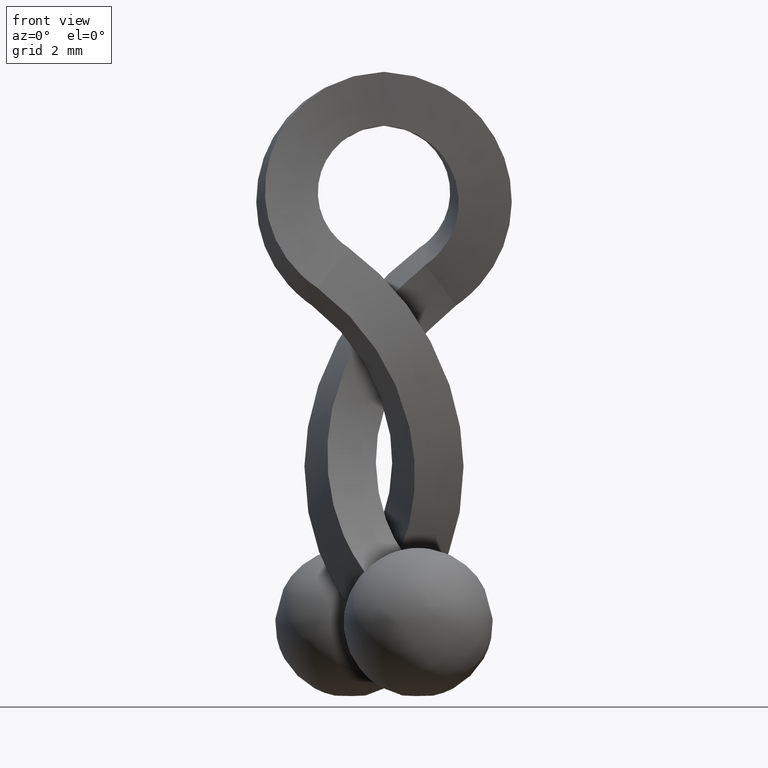
[diagram: clean part render]
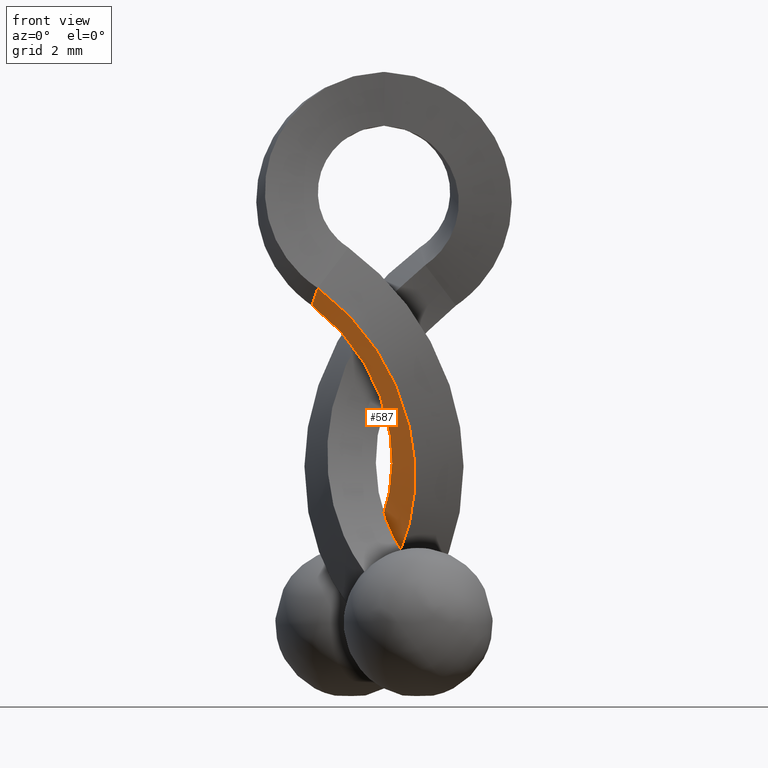
[diagram: same view with one face highlighted and labeled with its STEP entity id]
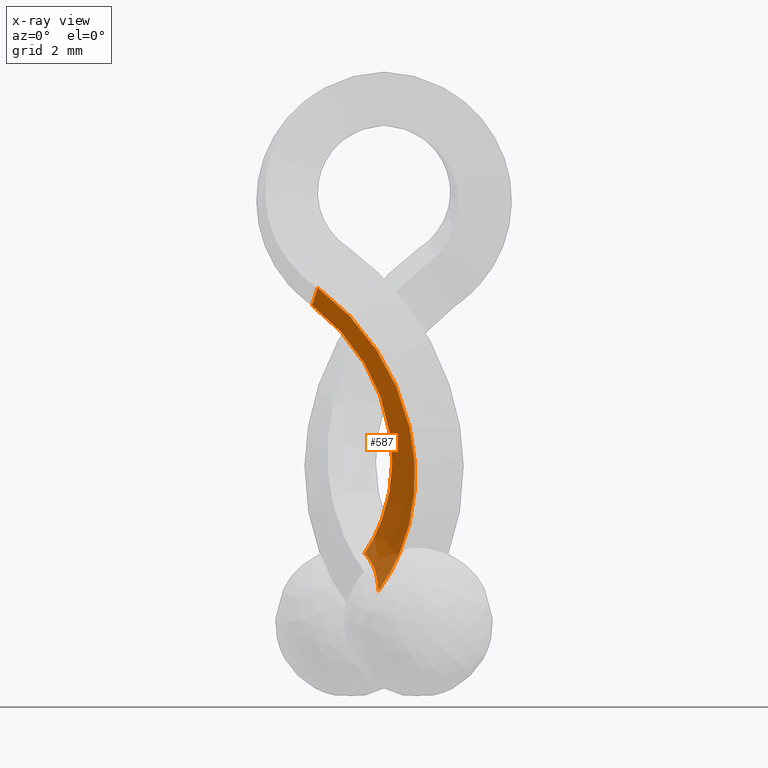
[diagram: x-ray of the same camera — body ghosted, the highlighted face saturated]
A machine part, front view. The second image highlights one B-rep face of the part: STEP entity #587.
The next image is the same camera in x-ray: the body ghosted, the highlighted face saturated — about 9% of this face is hidden behind the body in this view.
In plain terms, the highlighted face is a freeform B-spline surface patch.
Its self-contained STEP definition (entity closure, byte-faithful):
#88=CARTESIAN_POINT('',(-0.187365948330412,0.197707666171950,-13.245755313469999));
#89=VERTEX_POINT('',#88);
#90=CARTESIAN_POINT('',(-0.657491439051927,1.417299756467276,-11.994778617612900));
#91=VERTEX_POINT('',#90);
#92=CARTESIAN_POINT('',(-0.187365948330411,0.197707666171949,-13.245755313469999));
#93=CARTESIAN_POINT('',(-0.191825561108099,0.267382023275011,-13.106048539562650));
#94=CARTESIAN_POINT('',(-0.206212875228469,0.345901673045128,-12.974420041253261));
#95=CARTESIAN_POINT('',(-0.252517118538662,0.520171432898224,-12.726562867938370));
#96=CARTESIAN_POINT('',(-0.284441562416608,0.615921915084131,-12.610335852671970));
#97=CARTESIAN_POINT('',(-0.366018238235765,0.825973442296277,-12.394248576698580));
#98=CARTESIAN_POINT('',(-0.414286045230814,0.936726671208481,-12.298061945655890));
#99=CARTESIAN_POINT('',(-0.497286466168865,1.110925992209072,-12.171055447944710));
#100=CARTESIAN_POINT('',(-0.526742700382461,1.170355930958676,-12.131606707625981));
#101=CARTESIAN_POINT('',(-0.589372807412689,1.291966412588508,-12.058598821255240));
#102=CARTESIAN_POINT('',(-0.622638408444846,1.354304698464043,-12.024980235827170));
#103=CARTESIAN_POINT('',(-0.657491439051927,1.417299756467276,-11.994778617612900));
#104=B_SPLINE_CURVE_WITH_KNOTS('',3,(#92,#93,#94,#95,#96,#97,#98,#99,#100,#101,#102,#103),.UNSPECIFIED.,.F.,.U.,(4,2,2,2,2,4),(0.0,0.250000000000000,0.500000000000000,0.750000000000000,0.875000000000000,1.0),.UNSPECIFIED.);
#105=EDGE_CURVE('',#89,#91,#104,.T.);
#367=CARTESIAN_POINT('',(-2.221295444274015,-2.242601739820090,-3.089225805483630));
#368=VERTEX_POINT('',#367);
#382=CARTESIAN_POINT('',(-2.221295444274015,-2.242601739820090,-3.089225805483630));
#383=CARTESIAN_POINT('',(-2.125969881719033,-2.253342588289417,-3.159748152407557));
#384=CARTESIAN_POINT('',(-2.032024838796250,-2.263206183396222,-3.231588228358451));
#385=CARTESIAN_POINT('',(-1.826337623907148,-2.282109573049236,-3.397603924858196));
#386=CARTESIAN_POINT('',(-1.715331819397314,-2.290751414845497,-3.492255637011788));
#387=CARTESIAN_POINT('',(-1.390014400105739,-2.311298287032385,-3.785134638820405));
#388=CARTESIAN_POINT('',(-1.183410894042757,-2.317818127735772,-3.992298012229599));
#389=CARTESIAN_POINT('',(-0.598756995098599,-2.315709234347855,-4.645168035644137));
#390=CARTESIAN_POINT('',(-0.256116774605315,-2.285323747065436,-5.122260719066810));
#391=CARTESIAN_POINT('',(0.602502116356110,-2.109706175388952,-6.640201649130565));
#392=CARTESIAN_POINT('',(0.945183225299918,-1.878621388537423,-7.767807641083852));
#393=CARTESIAN_POINT('',(1.096932855810851,-1.238441243465682,-10.010318306804891));
#394=CARTESIAN_POINT('',(0.905876338536688,-0.829873381637522,-11.123375193984421));
#395=CARTESIAN_POINT('',(0.289382292982021,-0.191493173761474,-12.511152809843830));
#396=CARTESIAN_POINT('',(0.069088392965085,0.001293906045880,-12.892555423470920));
#397=CARTESIAN_POINT('',(-0.187365948330412,0.197707666171950,-13.245755313469999));
#398=B_SPLINE_CURVE_WITH_KNOTS('',3,(#382,#383,#384,#385,#386,#387,#388,#389,#390,#391,#392,#393,#394,#395,#396,#397),.UNSPECIFIED.,.F.,.U.,(4,2,2,2,2,2,2,4),(0.133391573818187,0.158830783371632,0.190080783371632,0.252580783371632,0.377580783371632,0.627580783371632,0.877580783371632,0.980010228467055),.UNSPECIFIED.);
#399=EDGE_CURVE('',#368,#89,#398,.T.);
#500=CARTESIAN_POINT('',(-2.277664382221885,-2.244507438032125,-3.044131414860055));
#501=CARTESIAN_POINT('',(-2.340490550219806,-1.675316065736262,-3.242429409224289));
#502=CARTESIAN_POINT('',(-2.403316718217726,-1.106124693440404,-3.440727403588528));
#503=CARTESIAN_POINT('',(-2.466142886215649,-0.536933321144547,-3.639025397952767));
#504=CARTESIAN_POINT('',(-2.162586130310646,-2.257798447707727,-3.128216247036175));
#505=CARTESIAN_POINT('',(-2.228977693772546,-1.688150023118382,-3.324055802642024));
#506=CARTESIAN_POINT('',(-2.295369257234481,-1.118501598529065,-3.519895358247903));
#507=CARTESIAN_POINT('',(-2.361760820696417,-0.548853173939765,-3.715734913853751));
#508=CARTESIAN_POINT('',(-2.049332094238354,-2.269978960060630,-3.213884491112316));
#509=CARTESIAN_POINT('',(-2.125345028261982,-1.699169419258267,-3.402855651786472));
#510=CARTESIAN_POINT('',(-2.201357962285637,-1.128359878455904,-3.591826812460653));
#511=CARTESIAN_POINT('',(-2.277370896309232,-0.557550337653543,-3.780797973134736));
#512=CARTESIAN_POINT('',(-1.598053649931404,-2.311470118718149,-3.578072953891254));
#513=CARTESIAN_POINT('',(-1.699730324745656,-1.737998693197284,-3.747312941242217));
#514=CARTESIAN_POINT('',(-1.801406999559899,-1.164527267676443,-3.916552928593065));
#515=CARTESIAN_POINT('',(-1.903083674374202,-0.591055842155608,-4.085792915944076));
#516=CARTESIAN_POINT('',(-0.853640873072516,-2.347034273417934,-4.285384882727326));
#517=CARTESIAN_POINT('',(-0.997804210208433,-1.770960627318833,-4.416110974850397));
#518=CARTESIAN_POINT('',(-1.141967547344165,-1.194886981219622,-4.546837066973602));
#519=CARTESIAN_POINT('',(-1.286130884480067,-0.618813335120419,-4.677563159096760));
#520=CARTESIAN_POINT('',(-0.253434365184900,-2.293847778745041,-5.120993623240319));
#521=CARTESIAN_POINT('',(-0.432234059025092,-1.720129649677550,-5.205812163029799));
#522=CARTESIAN_POINT('',(-0.611033752865496,-1.146411520610087,-5.290630702819340));
#523=CARTESIAN_POINT('',(-0.789833446705846,-0.572693391542662,-5.375449242609211));
#524=CARTESIAN_POINT('',(0.605916481020534,-2.118100682853665,-6.640181658959460));
#525=CARTESIAN_POINT('',(0.377063394902493,-1.553173629407335,-6.641198865205356));
#526=CARTESIAN_POINT('',(0.148210308784975,-0.988246575960867,-6.642216071451259));
#527=CARTESIAN_POINT('',(-0.080642777332806,-0.423319522514338,-6.643233277696633));
#528=CARTESIAN_POINT('',(0.948905247645258,-1.886836584747310,-7.768722138947855));
#529=CARTESIAN_POINT('',(0.699326405606979,-1.334183911332169,-7.707055535088942));
#530=CARTESIAN_POINT('',(0.449747563568962,-0.781531237917161,-7.645388931231078));
#531=CARTESIAN_POINT('',(0.200168721530941,-0.228878564502021,-7.583722327372173));
#532=CARTESIAN_POINT('',(1.100839937328684,-1.246156890379650,-10.013082277093300));
#533=CARTESIAN_POINT('',(0.839580787676854,-0.728224032205513,-9.825980413999071));
#534=CARTESIAN_POINT('',(0.578321638024743,-0.210291174031256,-9.638878550903861));
#535=CARTESIAN_POINT('',(0.317062488372646,0.307641684142879,-9.451776687809646));
#536=CARTESIAN_POINT('',(0.827346754694985,-0.661350346993866,-11.606256692988349));
#537=CARTESIAN_POINT('',(0.579042028688590,-0.175478932200720,-11.329556881653810));
#538=CARTESIAN_POINT('',(0.330737302682036,0.310392482592057,-11.052857070322220));
#539=CARTESIAN_POINT('',(0.082432576675790,0.796263897384841,-10.776157258989031));
#540=CARTESIAN_POINT('',(0.050148578697495,0.013813312790088,-12.935688048230981));
#541=CARTESIAN_POINT('',(-0.156761070742262,0.462255858808404,-12.583421172279120));
#542=CARTESIAN_POINT('',(-0.363670720182014,0.910698404826908,-12.231154296325711));
#543=CARTESIAN_POINT('',(-0.570580369621914,1.359140950845516,-11.878887420372941));
#544=CARTESIAN_POINT('',(-0.222923852696329,0.220447720982193,-13.303654244403701));
#545=CARTESIAN_POINT('',(-0.415147099289920,0.657403564319194,-12.930386932887799));
#546=CARTESIAN_POINT('',(-0.607370345883802,1.094359407656296,-12.557119621370990));
#547=CARTESIAN_POINT('',(-0.799593592477706,1.531315250993667,-12.183852309854220));
#548=B_SPLINE_SURFACE_WITH_KNOTS('',3,3,((#500,#504,#508,#512,#516,#520,#524,#528,#532,#536,#540,#544),(#501,#505,#509,#513,#517,#521,#525,#529,#533,#537,#541,#545),(#502,#506,#510,#514,#518,#522,#526,#530,#534,#538,#542,#546),(#503,#507,#511,#515,#519,#523,#527,#531,#535,#539,#543,#547)),.UNSPECIFIED.,.F.,.F.,.U.,(4,4),(4,2,1,2,2,1,4),(0.0,1.818030593326830),(0.0,0.429234453664855,1.747605223859542,3.505432917452459,7.021088304638292,10.536743691824130,12.048604628441980),.UNSPECIFIED.);
#549=ORIENTED_EDGE('',*,*,#105,.F.);
#550=ORIENTED_EDGE('',*,*,#399,.F.);
#551=CARTESIAN_POINT('',(-2.411460444258520,-0.551425846800978,-3.675844381211625));
#552=VERTEX_POINT('',#551);
#553=CARTESIAN_POINT('',(-2.221295444274015,-2.242601739820090,-3.089225805483630));
#554=CARTESIAN_POINT('',(-2.250904984772668,-1.961030993496815,-3.188514764424261));
#555=CARTESIAN_POINT('',(-2.281459031402204,-1.679323473205865,-3.287123057796391));
#556=CARTESIAN_POINT('',(-2.329310285238189,-1.256484355535253,-3.433555516878741));
#557=CARTESIAN_POINT('',(-2.345581460064278,-1.115493940590159,-3.482131176732441));
#558=CARTESIAN_POINT('',(-2.370216482880057,-0.903977865894764,-3.554825646876809));
#559=CARTESIAN_POINT('',(-2.378462696947199,-0.833467892868871,-3.579031556237958));
#560=CARTESIAN_POINT('',(-2.394951340205510,-0.692448318168596,-3.627445784694800));
#561=CARTESIAN_POINT('',(-2.403100520628842,-0.621951036063212,-3.651722814319169));
#562=CARTESIAN_POINT('',(-2.411460444258520,-0.551425846800978,-3.675844381211625));
#563=B_SPLINE_CURVE_WITH_KNOTS('',3,(#553,#554,#555,#556,#557,#558,#559,#560,#561,#562),.UNSPECIFIED.,.F.,.U.,(4,2,2,2,4),(0.0,0.500000000000000,0.750000000000000,0.875000000000000,1.0),.UNSPECIFIED.);
#564=EDGE_CURVE('',#368,#552,#563,.T.);
#565=ORIENTED_EDGE('',*,*,#564,.T.);
#566=CARTESIAN_POINT('',(-2.411460444258520,-0.551425846800978,-3.675844381211625));
#567=CARTESIAN_POINT('',(-2.330601684355954,-0.560376847314786,-3.736183353277583));
#568=CARTESIAN_POINT('',(-2.259938183707811,-0.567481014458086,-3.791242172227011));
#569=CARTESIAN_POINT('',(-2.089985188468579,-0.582693306376144,-3.929737943810253));
#570=CARTESIAN_POINT('',(-1.997767623744306,-0.589641843269921,-4.009118644479323));
#571=CARTESIAN_POINT('',(-1.727577723178754,-0.605999238105813,-4.254665916435283));
#572=CARTESIAN_POINT('',(-1.556075003628476,-0.610914422524207,-4.428247807254915));
#573=CARTESIAN_POINT('',(-1.071034717968621,-0.607589786454812,-4.974997930353491));
#574=CARTESIAN_POINT('',(-0.787176611138672,-0.581206401693986,-5.374174621561333));
#575=CARTESIAN_POINT('',(-0.077234213399004,-0.431706545402088,-6.643208278309625));
#576=CARTESIAN_POINT('',(0.203883734622244,-0.237084492992499,-7.584630542350798));
#577=CARTESIAN_POINT('',(0.320937131590816,0.299958158984014,-9.454569207429165));
#578=CARTESIAN_POINT('',(0.156776130739797,0.641936245511515,-10.381544814196840));
#579=CARTESIAN_POINT('',(-0.337901582809499,1.149142917320489,-11.478813479512660));
#580=CARTESIAN_POINT('',(-0.487089554705339,1.282029373913941,-11.744653612742180));
#581=CARTESIAN_POINT('',(-0.657491439051927,1.417299756467276,-11.994778617612900));
#582=B_SPLINE_CURVE_WITH_KNOTS('',3,(#566,#567,#568,#569,#570,#571,#572,#573,#574,#575,#576,#577,#578,#579,#580,#581),.UNSPECIFIED.,.F.,.U.,(4,2,2,2,2,2,2,4),(0.150753461988381,0.175874032664971,0.207124032664971,0.269624032664971,0.394624032664971,0.644624032664971,0.894624032664971,0.979691589590200),.UNSPECIFIED.);
#583=EDGE_CURVE('',#552,#91,#582,.T.);
#584=ORIENTED_EDGE('',*,*,#583,.T.);
#585=EDGE_LOOP('',(#549,#550,#565,#584));
#586=FACE_OUTER_BOUND('',#585,.T.);
#587=ADVANCED_FACE('',(#586),#548,.T.);